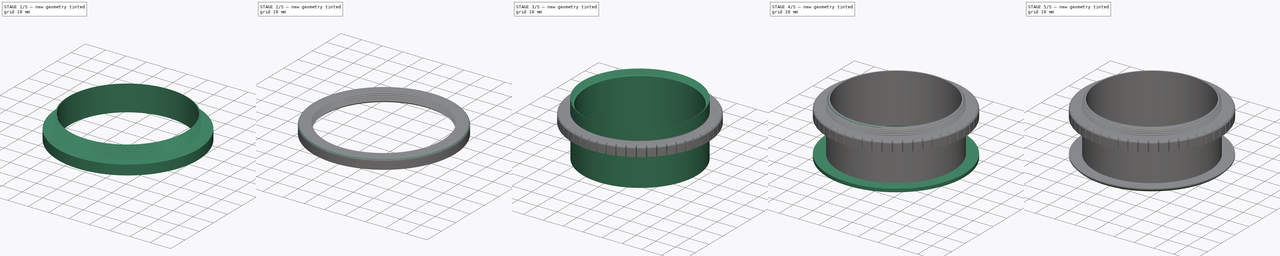
[diagram: build sequence overview — one tinted view per stage of 5, left to right]
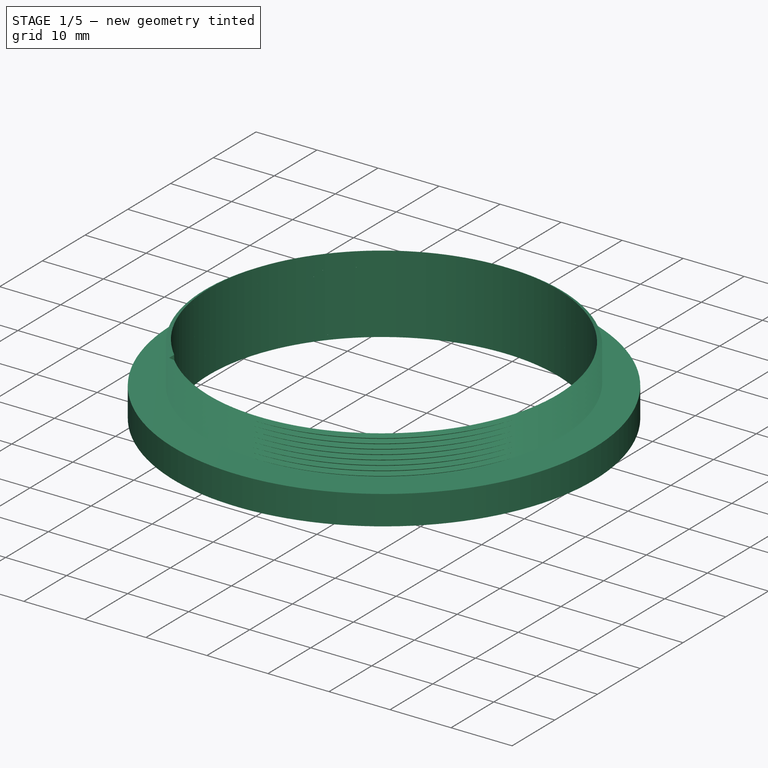
[diagram: stage 1 of 5 — iso view after this stage's code; geometry added in this stage tinted green]
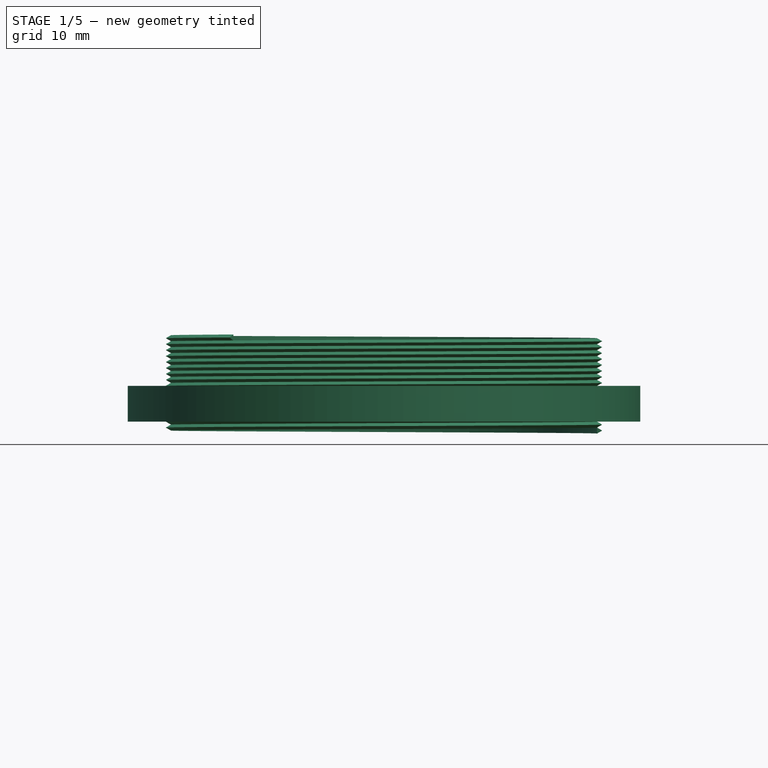
[diagram: stage 1 of 5 — front view after this stage's code; geometry added in this stage tinted green]
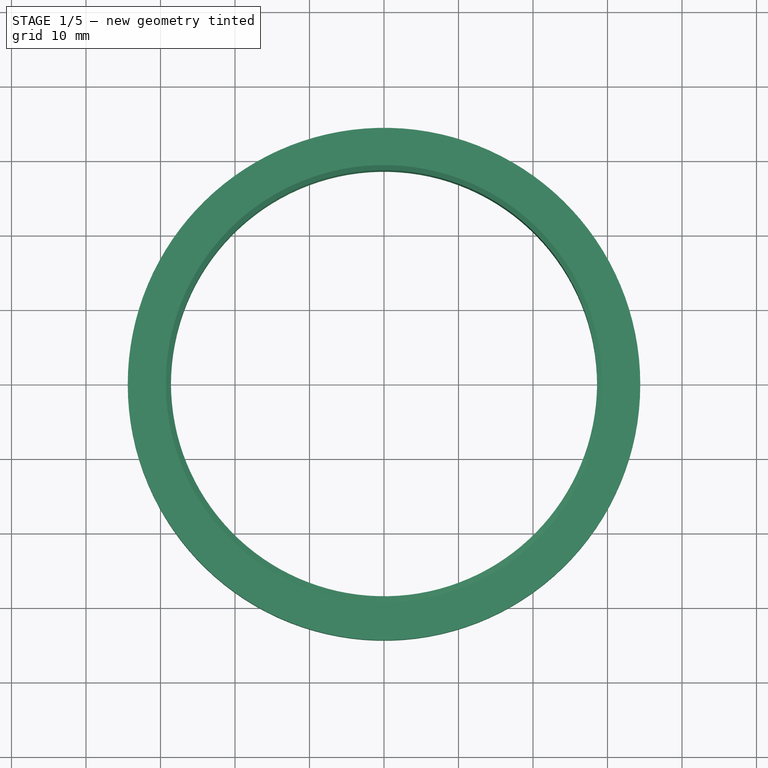
[diagram: stage 1 of 5 — top view after this stage's code; geometry added in this stage tinted green]
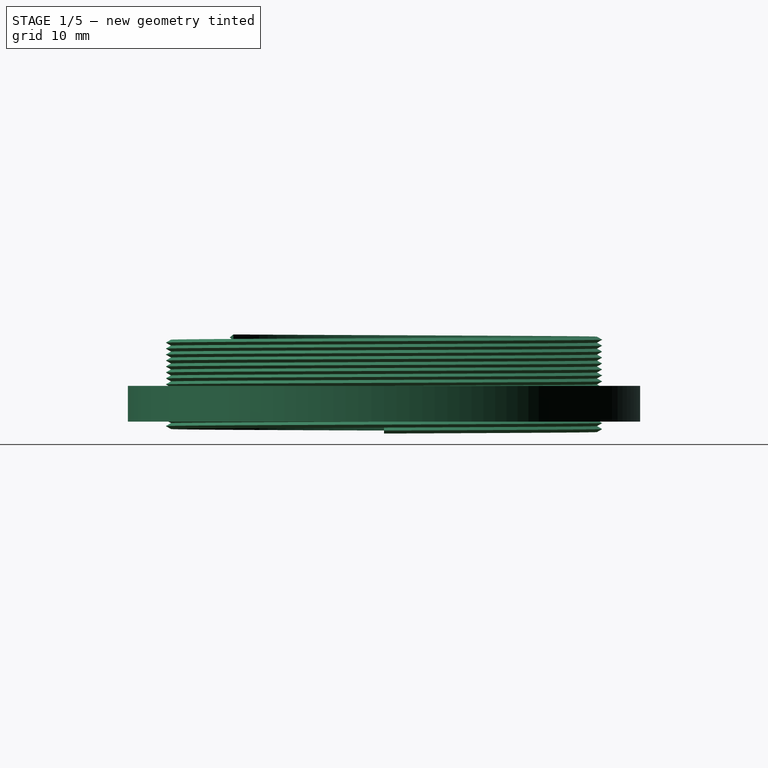
[diagram: stage 1 of 5 — right view after this stage's code; geometry added in this stage tinted green]
FCSTD DOCUMENT  (FreeCAD 0.19R23258 (Git))
Label: hole-cover-ring-threaded-26mmx18mm
License: All rights reserved
LicenseURL: http://en.wikipedia.org/wiki/All_rights_reserved
objects: Part::FeaturePython×3, Part::Chamfer×3, Sketcher::SketchObject×3, PartDesign::SubtractivePipe×3, PartDesign::Body×3, Part::Fillet×2, Part::Helix×2, PartDesign::ShapeBinder×2, Part::Cut×2, Spreadsheet::Sheet×1, Part::MultiFuse×1, PartDesign::FeatureBase×1, PartDesign::PolarPattern×1
note: 29 computed .brp shape members not serialized (recipe doc carries the construction recipe); baked Part::Feature solids carry a one-line shape summary decoded from their .brp

FEATURE [Part::FeaturePython] Tube002  label="ring"  # WARN: FeaturePython — macro-defined, semantics opaque (R4)
  AttacherType = Attacher::AttachEngine3D
  Height = 4.8
  InnerRadius = 28.6549
  OuterRadius = 34.4
  Placement = pos=(0,0,18.2667) rot=(0,0,1;0rad)
  expr: .Placement.Base.z = Spreadsheet.Height - Spreadsheet.Height / 3 + Spreadsheet.Tickness
  expr: InnerRadius = Spreadsheet.OuterDiameter / 2 - Spreadsheet.Tolerance / 1.02
  expr: OuterRadius = Spreadsheet.OuterDiameter / 2 + Spreadsheet.FlangeWidth
  expr: Height = Spreadsheet.Tickness * 3
FEATURE [Part::Helix] Helix001  label="ring-Helix001"
  Angle = 0
  AttacherType = Attacher::AttachEngine3D
  Height = 12.5
  LocalCoord = 0
  Pitch = 0.8
  Placement = pos=(0,0,17.0667) rot=(0,0,1;0rad)
  Radius = 28.6
  Style = 1
  expr: Height = Spreadsheet.Height / 2
  expr: .Placement.Base.z = Spreadsheet.Height - Spreadsheet.Height / 3 + Spreadsheet.Tickness / 4
  expr: Pitch = Spreadsheet.Tickness / 2
  expr: Radius = Spreadsheet.OuterDiameter / 2 - Spreadsheet.Tolerance * 1.2
FEATURE [Part::Chamfer] Chamfer002  label="ring001"
  Base = -> Tube002
  Edges = 1 edges r=1: [Edge5]
FEATURE [Sketcher::SketchObject] Sketch001  label="ring-triangle"
  MapMode = 7
  Placement = pos=(28.6,-1.83e-14,17.0667) rot=(1,0,0;1.57525rad)
  Support = -> [Helix001]
  expr: Constraints[8] = Spreadsheet.Tickness / 2
  sketch-geometry (4):
    g0: LineSegment StartX=0.69282 StartY=4.85e-14 StartZ=0 EndX=0 EndY=0.4 EndZ=0
    g1: LineSegment StartX=0 StartY=0.4 StartZ=0 EndX=0 EndY=-0.4 EndZ=0
    g2: LineSegment StartX=0 StartY=-0.4 StartZ=0 EndX=0.69282 EndY=4.85e-14 EndZ=0
    g3: Circle [constr] CenterX=0.23094 CenterY=-3.26e-14 CenterZ=0 NormalX=0 NormalY=0 NormalZ=1 AngleXU=0 Radius=0.46188
  constraints (11):
    c: Coincident(g0,g1)
    c: Coincident(g1,g2)
    c: Coincident(g2,g0)
    c: Equal(g0,g1)
    c: Equal(g0,g2)
    c: PointOnObject(g0,g3)
    c: PointOnObject(g1,g3)
    c: PointOnObject(g2,g3)
    c: Distance(g0) = 0.8
    c: PointOnObject(g0,g-2)
    c: Symmetric(g0,g1,g-1)
FEATURE [PartDesign::ShapeBinder] ReferenceHelix001
  Placement = pos=(0,0,17.0667) rot=(0,0,1;0rad)
  Support = -> [Helix001]
  TraceSupport = false
FEATURE [PartDesign::SubtractivePipe] SubtractivePipe001
  AuxilleryCurvelinear = true
  AuxillerySpineTangent = false
  Binormal = (0,0,0)
  Mode = 2
  Placement = pos=(0,0,17.0667) rot=(0,0,1;0rad)
  Profile = -> Sketch001
  Spine = -> ReferenceHelix001
  SpineTangent = false
  Transformation = 0
  Transition = 0
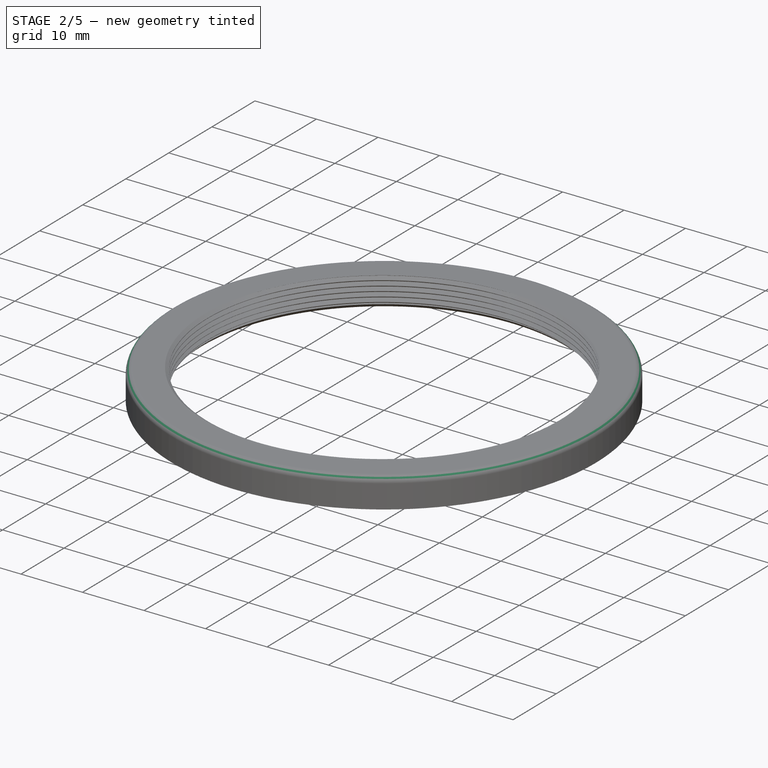
[diagram: stage 2 of 5 — iso view after this stage's code; geometry added in this stage tinted green]
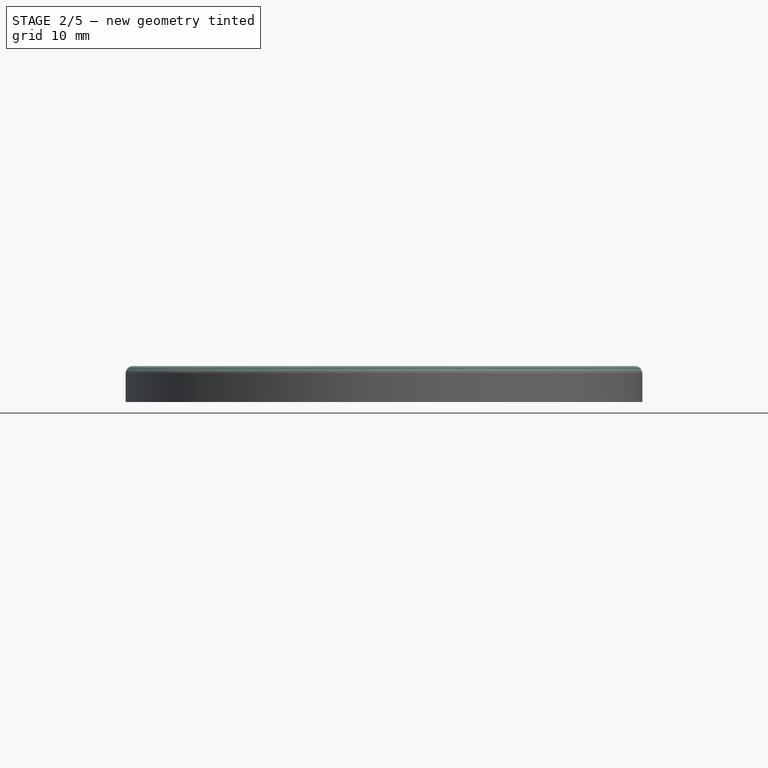
[diagram: stage 2 of 5 — front view after this stage's code; geometry added in this stage tinted green]
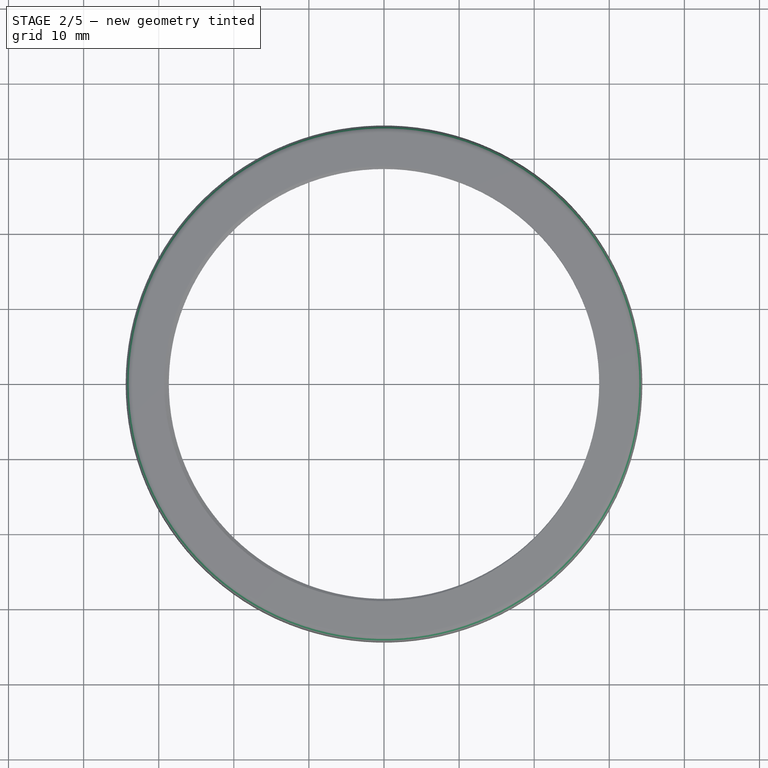
[diagram: stage 2 of 5 — top view after this stage's code; geometry added in this stage tinted green]
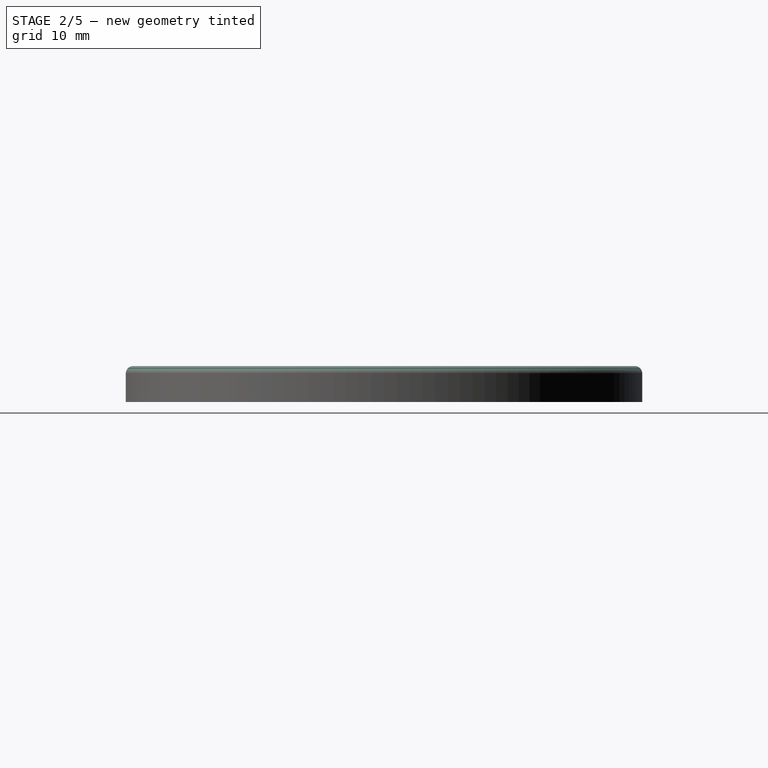
[diagram: stage 2 of 5 — right view after this stage's code; geometry added in this stage tinted green]
FEATURE [Part::Fillet] Fillet001  label="ring002"
  Base = -> Chamfer002
  Edges = 1 edges r=1: [Edge5]
FEATURE [PartDesign::Body] Body001
  Group = -> [Sketch001,SubtractivePipe001,ReferenceHelix001]
  Origin = -> Origin001
  Tip = -> SubtractivePipe001
FEATURE [Part::Cut] Cut001  label="ring-threaded003"
  Base = -> Fillet001
  Tool = -> Body001
FEATURE [PartDesign::FeatureBase] BaseFeature
  BaseFeature = -> Cut001
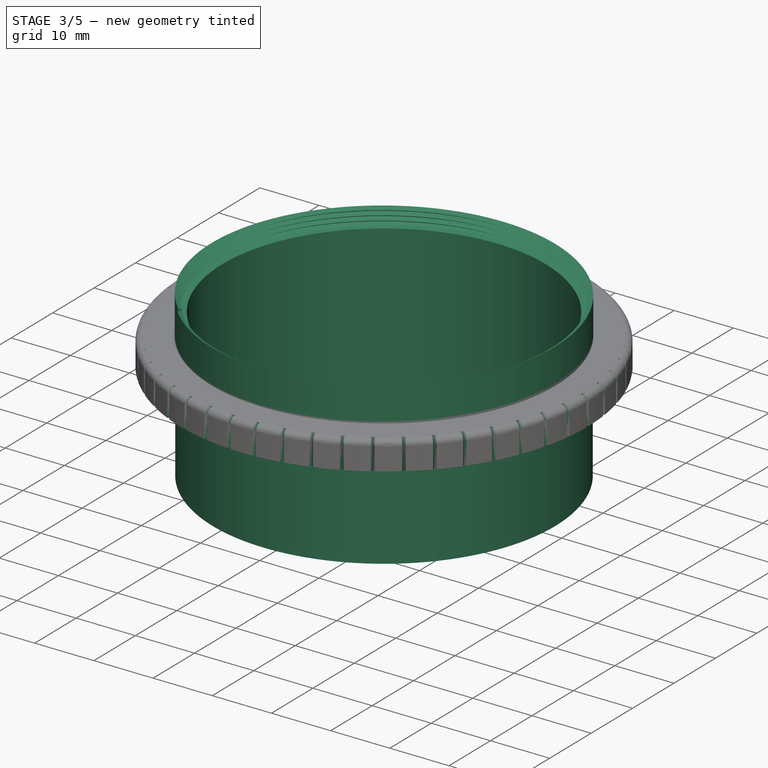
[diagram: stage 3 of 5 — iso view after this stage's code; geometry added in this stage tinted green]
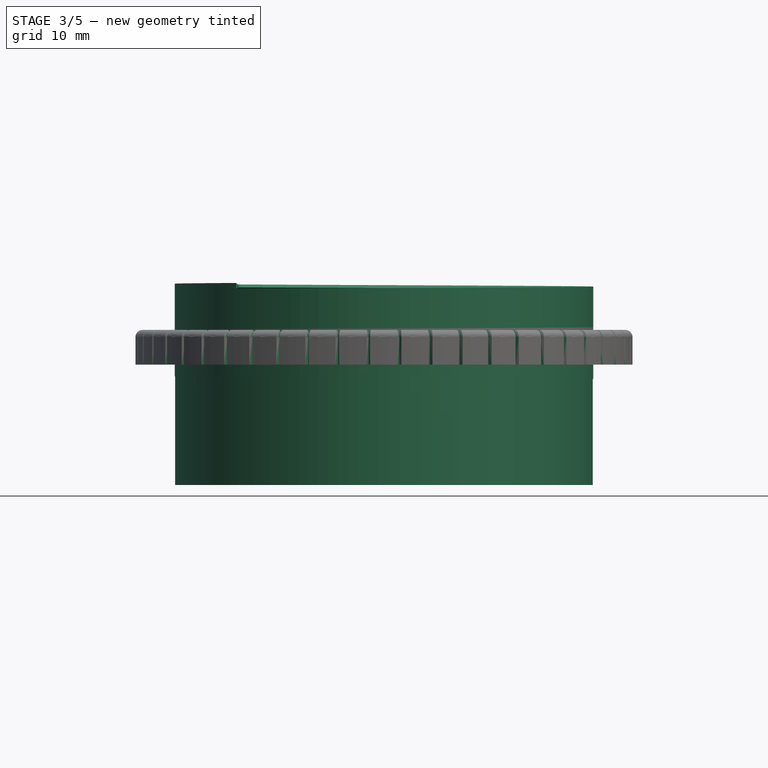
[diagram: stage 3 of 5 — front view after this stage's code; geometry added in this stage tinted green]
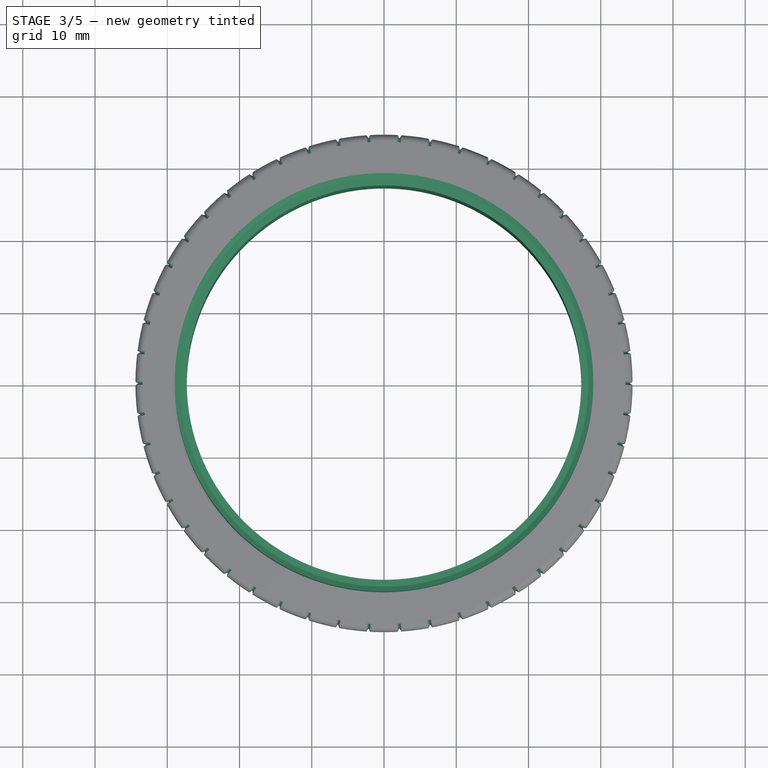
[diagram: stage 3 of 5 — top view after this stage's code; geometry added in this stage tinted green]
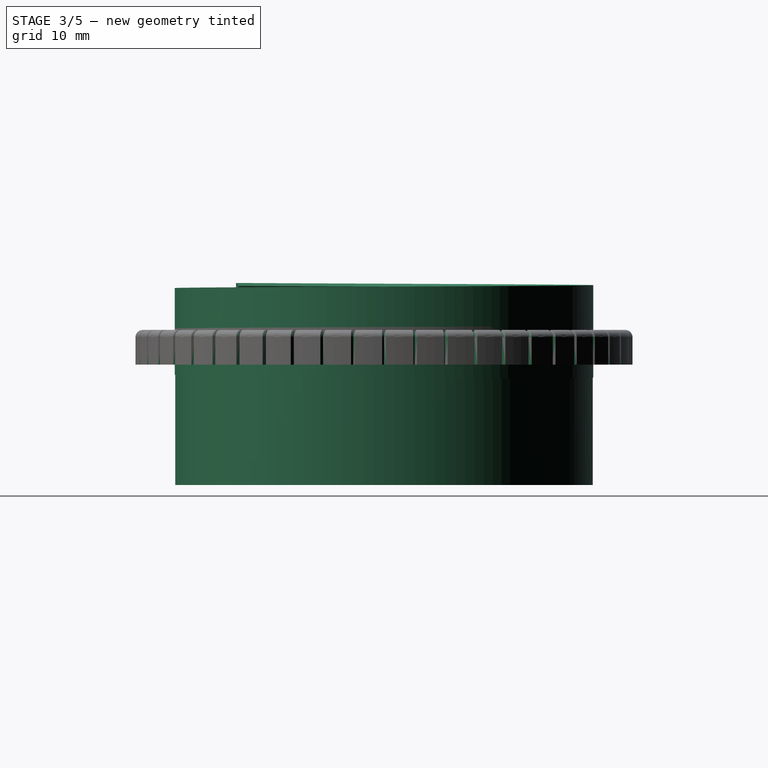
[diagram: stage 3 of 5 — right view after this stage's code; geometry added in this stage tinted green]
FEATURE [Part::FeaturePython] Tube001  label="body"  # WARN: FeaturePython — macro-defined, semantics opaque (R4)
  AttacherType = Attacher::AttachEngine3D
  Height = 25
  InnerRadius = 27.3
  OuterRadius = 28.9
  Placement = pos=(0,0,1.6) rot=(0,0,1;0rad)
  expr: Height = Spreadsheet.Height
  expr: OuterRadius = Spreadsheet.OuterDiameter / 2
  expr: InnerRadius = Spreadsheet.OuterDiameter / 2 - Spreadsheet.Tickness
  expr: .Placement.Base.z = Spreadsheet.Tickness
FEATURE [Sketcher::SketchObject] Sketch  label="body-triangle001"
  MapMode = 7
  Placement = pos=(28.9625,-3.28e-14,16.6667) rot=(1,0,0;1.57519rad)
  Support = -> [Helix]
  expr: Constraints[8] = Spreadsheet.Tickness / 2
  sketch-geometry (4):
    g0: LineSegment StartX=-0.69282 StartY=0 StartZ=0 EndX=0 EndY=-0.4 EndZ=0
    g1: LineSegment StartX=0 StartY=-0.4 StartZ=0 EndX=0 EndY=0.4 EndZ=0
    g2: LineSegment StartX=0 StartY=0.4 StartZ=0 EndX=-0.69282 EndY=0 EndZ=0
    g3: Circle [constr] CenterX=-0.23094 CenterY=0 CenterZ=0 NormalX=0 NormalY=0 NormalZ=1 AngleXU=0 Radius=0.46188
  constraints (11):
    c: Coincident(g0,g1)
    c: Coincident(g1,g2)
    c: Coincident(g2,g0)
    c: Equal(g0,g1)
    c: Equal(g0,g2)
    c: PointOnObject(g0,g3)
    c: PointOnObject(g1,g3)
    c: PointOnObject(g2,g3)
    c: Distance(g2) = 0.8
    c: PointOnObject(g1,g-2)
    c: Symmetric(g1,g0,g-1)
FEATURE [PartDesign::ShapeBinder] ReferenceHelix
  Placement = pos=(0,0,16.6667) rot=(0,0,1;0rad)
  Support = -> [Helix]
  TraceSupport = false
FEATURE [PartDesign::SubtractivePipe] SubtractivePipe
  AuxilleryCurvelinear = true
  AuxillerySpineTangent = false
  Binormal = (0,0,0)
  Mode = 2
  Placement = pos=(0,0,16.6667) rot=(0,0,1;0rad)
  Profile = -> Sketch
  Spine = -> ReferenceHelix
  SpineTangent = false
  Transformation = 0
  Transition = 0
FEATURE [Sketcher::SketchObject] Sketch002  label="external-ring-triangle"
  ExternalGeometry = -> [BaseFeature]
  MapMode = 5
  Placement = pos=(0,0,18.2667) rot=(1,0,0;3.14159rad)
  Support = -> [BaseFeature]
  expr: Constraints[9] = Spreadsheet.Tickness / 2
  sketch-geometry (4):
    g0: LineSegment StartX=34.6309 StartY=-0.4 StartZ=0 EndX=34.6309 EndY=0.4 EndZ=0
    g1: LineSegment StartX=34.6309 StartY=0.4 StartZ=0 EndX=33.9381 EndY=-2e-16 EndZ=0
    g2: LineSegment StartX=33.9381 StartY=-2e-16 StartZ=0 EndX=34.6309 EndY=-0.4 EndZ=0
    g3: Circle [constr] CenterX=34.4 CenterY=0 CenterZ=0 NormalX=0 NormalY=0 NormalZ=1 AngleXU=0 Radius=0.46188
  constraints (12):
    c: Coincident(g0,g1)
    c: Coincident(g1,g2)
    c: Coincident(g2,g0)
    c: Equal(g0,g1)
    c: Equal(g0,g2)
    c: PointOnObject(g0,g3)
    c: PointOnObject(g1,g3)
    c: PointOnObject(g2,g3)
    c: Parallel(g0,g-2)
    c: Distance(g1) = 0.8
    c: PointOnObject(g3,g-1)
    c: PointOnObject(g3,g-3)
FEATURE [PartDesign::SubtractivePipe] SubtractivePipe002  label="ring-threaded002"
  AuxilleryCurvelinear = true
  AuxillerySpineTangent = false
  BaseFeature = -> BaseFeature
  Binormal = (0,0,0)
  Mode = 0
  Profile = -> Sketch002
  Spine = -> BaseFeature [Edge1,Edge4]
  SpineTangent = false
  Transformation = 0
  Transition = 0
FEATURE [PartDesign::PolarPattern] PolarPattern
  Angle = 360
  Axis = -> Sketch002 [N_Axis]
  BaseFeature = -> SubtractivePipe002
  Occurrences = 50
  Originals = -> [SubtractivePipe002]
FEATURE [PartDesign::Body] Body002  label="hole-cover-ring-threaded"
  BaseFeature = -> Cut001
  Group = -> [BaseFeature,Sketch002,SubtractivePipe002,PolarPattern]
  Origin = -> Origin002
  Tip = -> PolarPattern
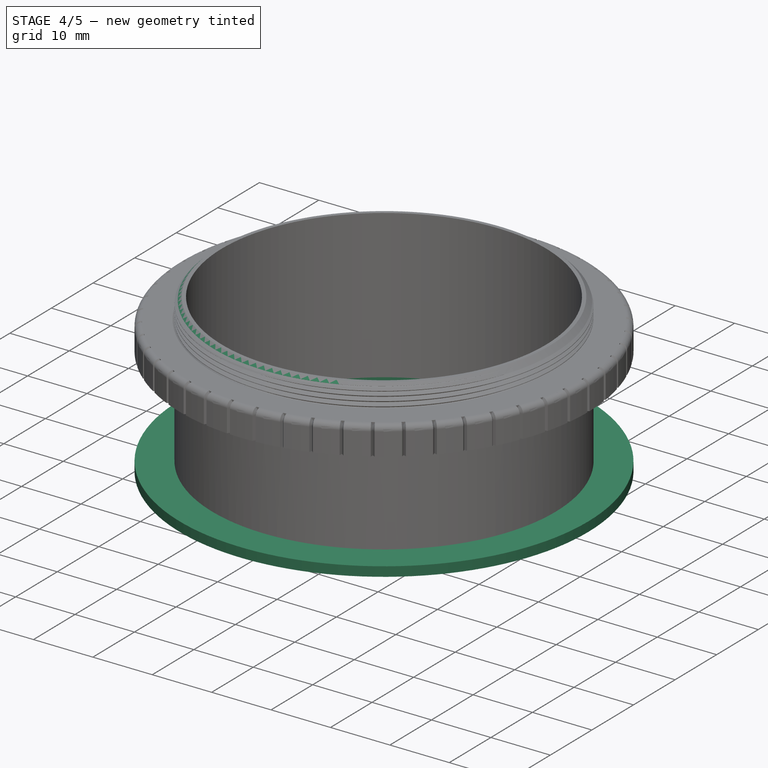
[diagram: stage 4 of 5 — iso view after this stage's code; geometry added in this stage tinted green]
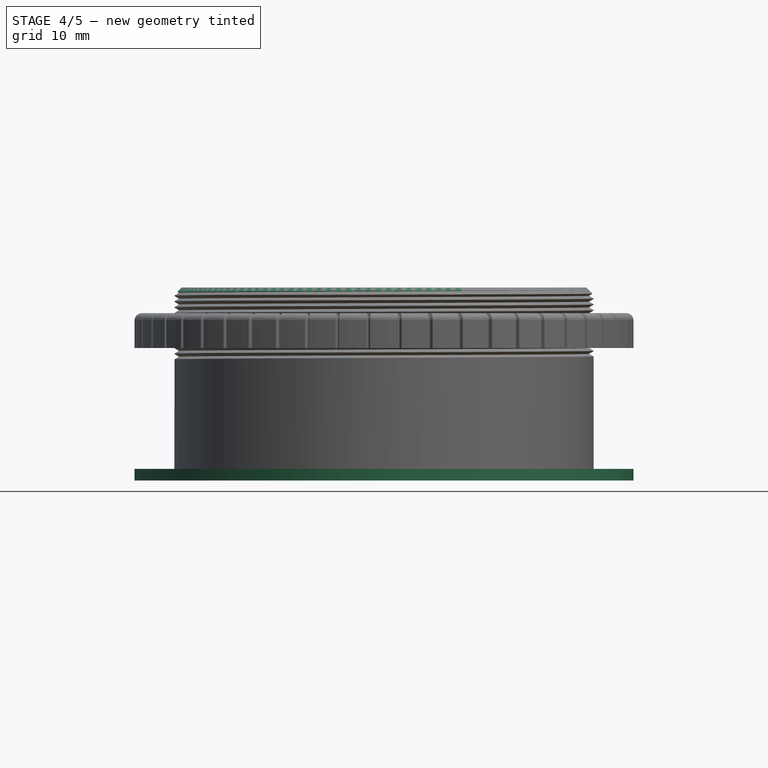
[diagram: stage 4 of 5 — front view after this stage's code; geometry added in this stage tinted green]
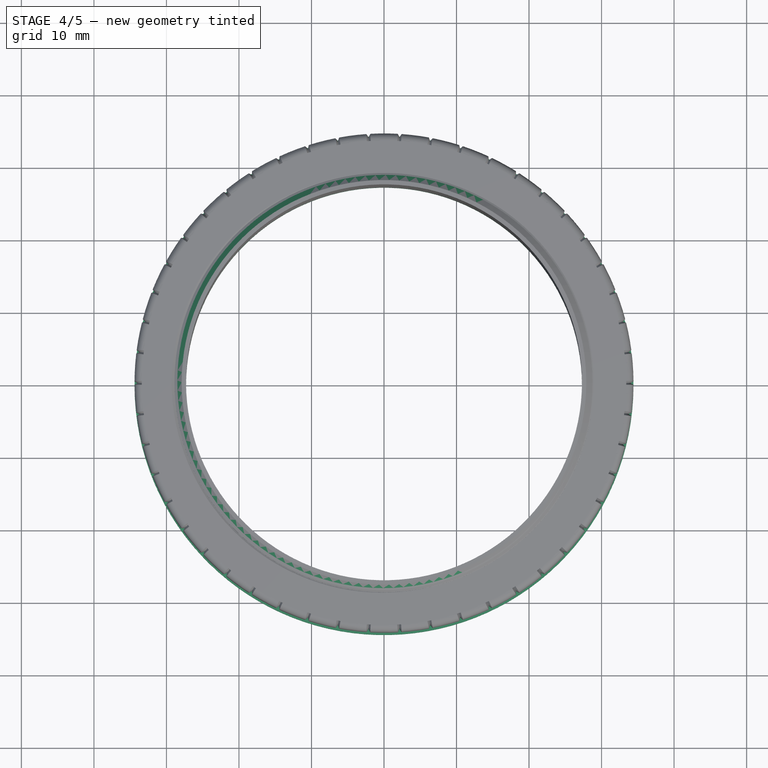
[diagram: stage 4 of 5 — top view after this stage's code; geometry added in this stage tinted green]
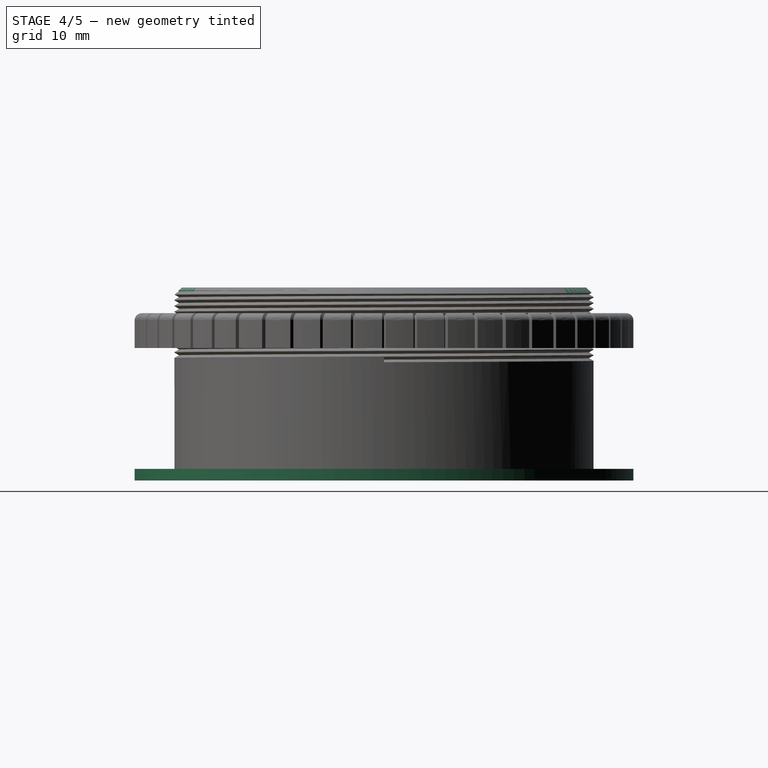
[diagram: stage 4 of 5 — right view after this stage's code; geometry added in this stage tinted green]
FEATURE [Part::FeaturePython] Tube  label="head"  # WARN: FeaturePython — macro-defined, semantics opaque (R4)
  AttacherType = Attacher::AttachEngine3D
  Height = 1.6
  InnerRadius = 27.3
  OuterRadius = 34.4
  expr: Height = Spreadsheet.Tickness
  expr: InnerRadius = Spreadsheet.OuterDiameter / 2 - Spreadsheet.Tickness
  expr: OuterRadius = Spreadsheet.OuterDiameter / 2 + Spreadsheet.FlangeWidth
FEATURE [Part::Helix] Helix  label="body-Helix"
  Angle = 0
  AttacherType = Attacher::AttachEngine3D
  Height = 12.5
  LocalCoord = 0
  Pitch = 0.8
  Placement = pos=(0,0,16.6667) rot=(0,0,1;0rad)
  Radius = 28.9625
  Style = 1
  expr: Pitch = Spreadsheet.Tickness / 2
  expr: Height = Spreadsheet.Height / 2
  expr: Radius = Spreadsheet.OuterDiameter / 2 + Spreadsheet.Tolerance / 4
  expr: .Placement.Base.z = Spreadsheet.Height - Spreadsheet.Height / 3
FEATURE [Part::Chamfer] Chamfer001  label="body001"
  Base = -> Tube001
  Edges = 1 edges r=1: [Edge1]
FEATURE [PartDesign::Body] Body  label="thread"
  Group = -> [Sketch,SubtractivePipe,ReferenceHelix]
  Origin = -> Origin
  Tip = -> SubtractivePipe
FEATURE [Part::Cut] Cut  label="body002"
  Base = -> Chamfer001
  Tool = -> Body
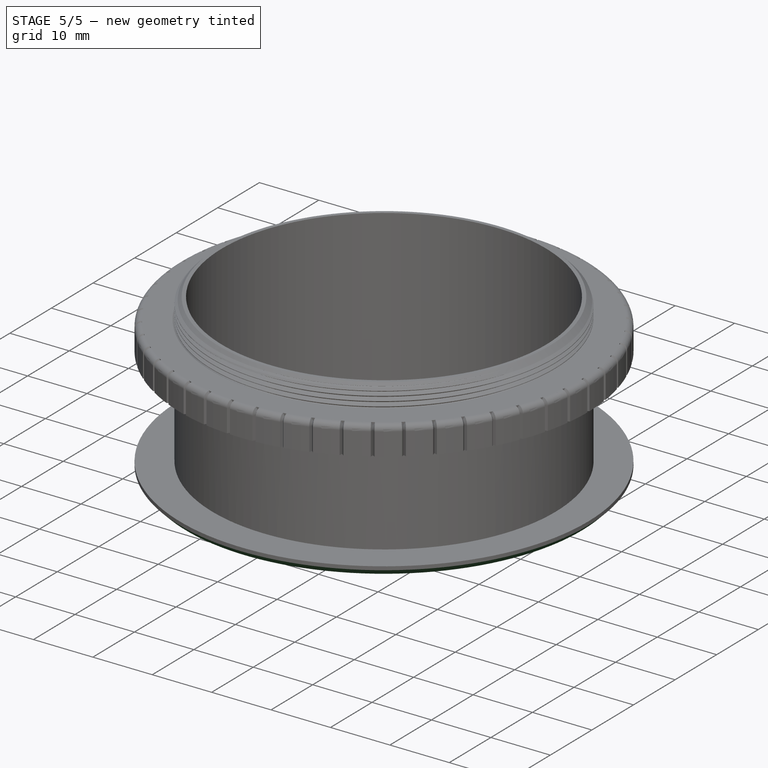
[diagram: stage 5 of 5 — iso view after this stage's code; geometry added in this stage tinted green]
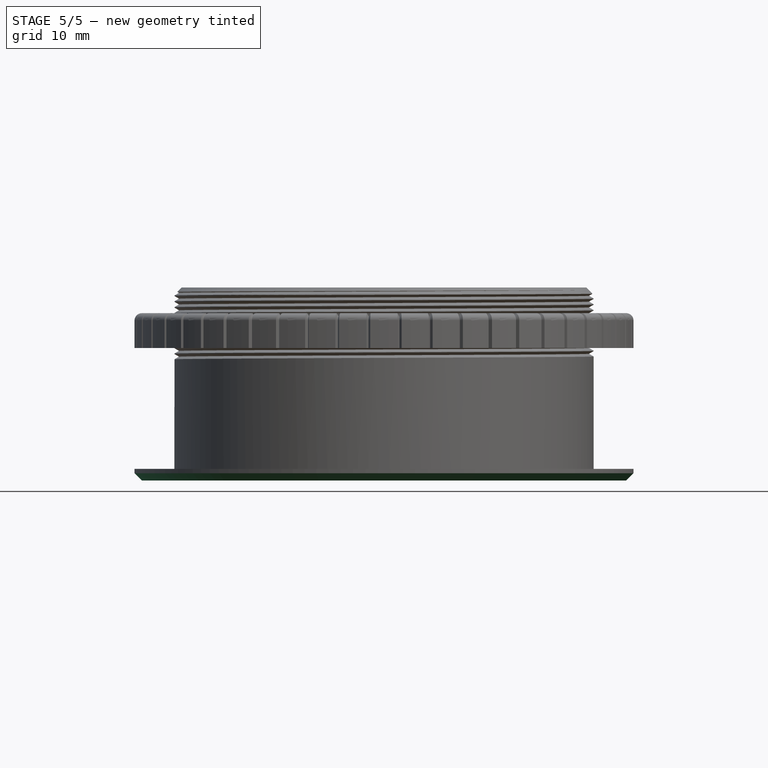
[diagram: stage 5 of 5 — front view after this stage's code; geometry added in this stage tinted green]
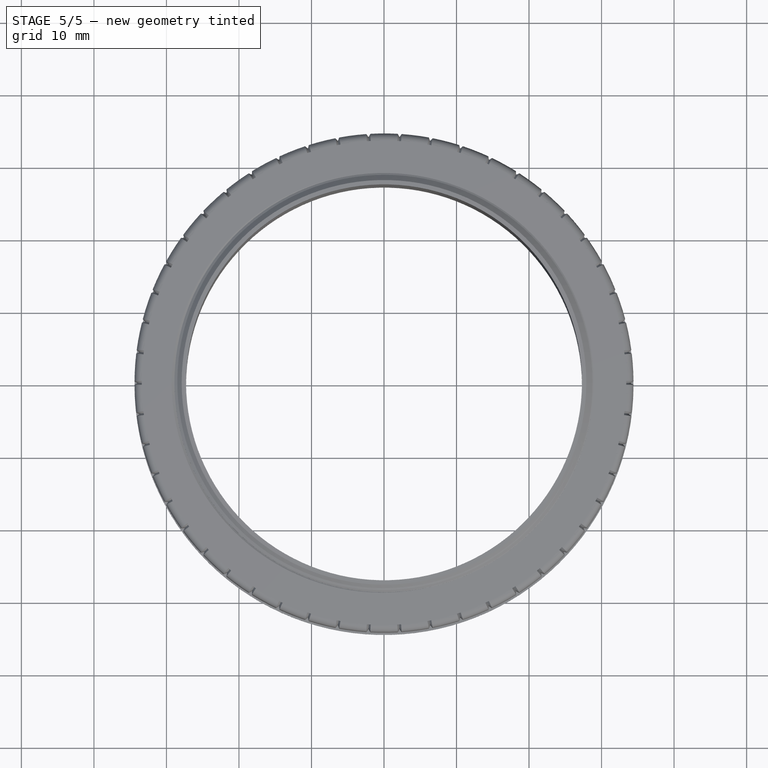
[diagram: stage 5 of 5 — top view after this stage's code; geometry added in this stage tinted green]
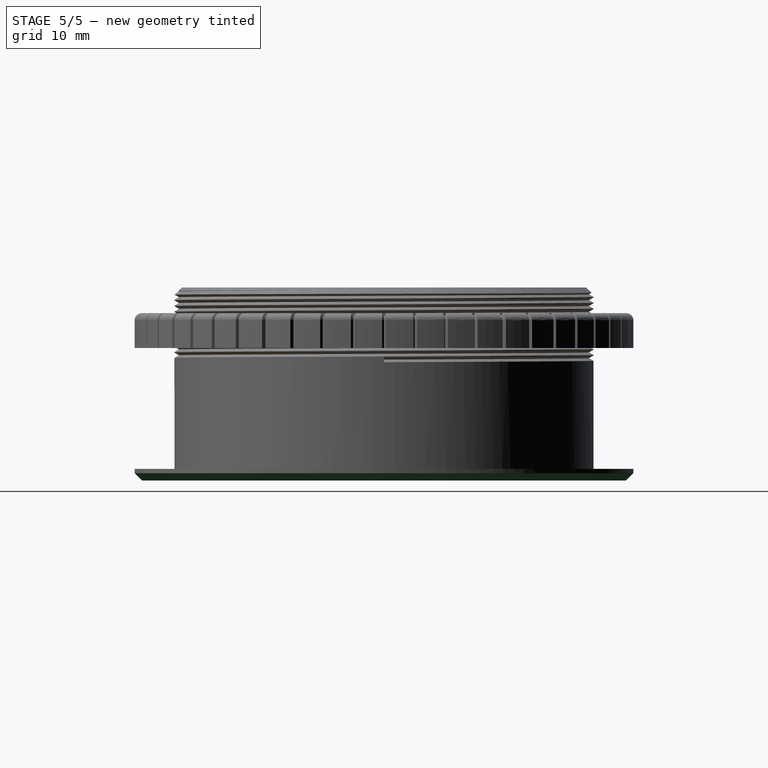
[diagram: stage 5 of 5 — right view after this stage's code; geometry added in this stage tinted green]
FEATURE [Spreadsheet::Sheet] Spreadsheet  label="parameters"
  cells = A3=Tolerance; B3(Tolerance)=0.25; C3=Do not change those if you down understand the model!; A4=Tickness; B4(Tickness)=1.6; A5=FlangeWidth; B5(FlangeWidth)=5.5; A6=OuterDiameter; B6(OuterDiameter)==HoleDiameter - 1; A7=Height; B7(Height)==HoleHeight + 7; A11=HoleDiameter; B11(HoleDiameter)=58.8; C11=Change those according to your necessity; A12=HoleHeight; B12(HoleHeight)=18
FEATURE [Part::Chamfer] Chamfer  label="head001"
  Base = -> Tube
  Edges = 1 edges r=1: [Edge3]
FEATURE [Part::Fillet] Fillet  label="head002"
  Base = -> Chamfer
  Edges = 1 edges r=1: [Edge7]
FEATURE [Part::MultiFuse] Fusion  label="hole-cover-body-threaded"
  Shapes = -> [Fillet,Cut]
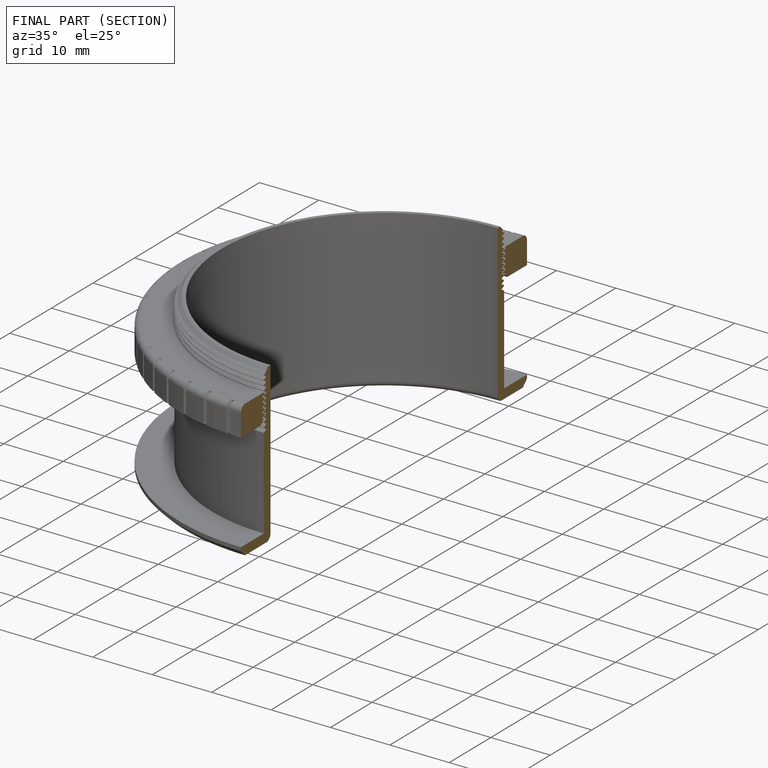
[diagram: finished part — half-section view (interior)]
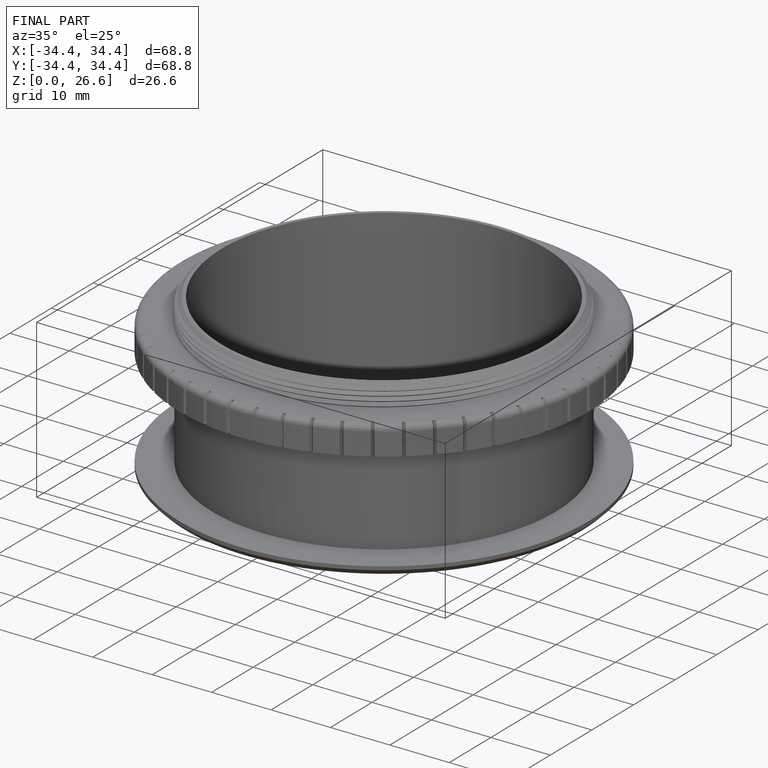
[diagram: finished part — iso view with bounding-box wireframe]
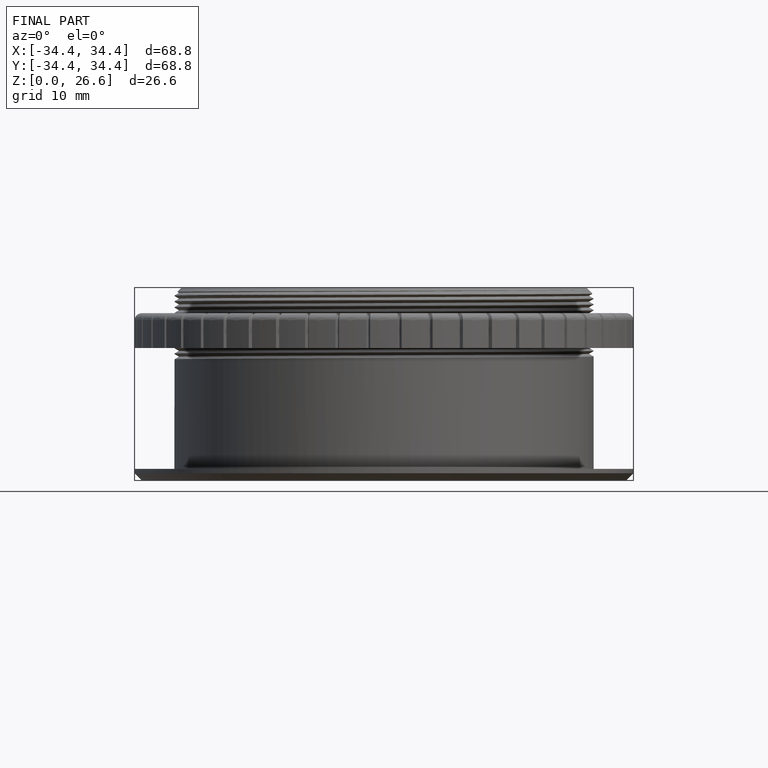
[diagram: finished part — front view with bounding-box wireframe]
